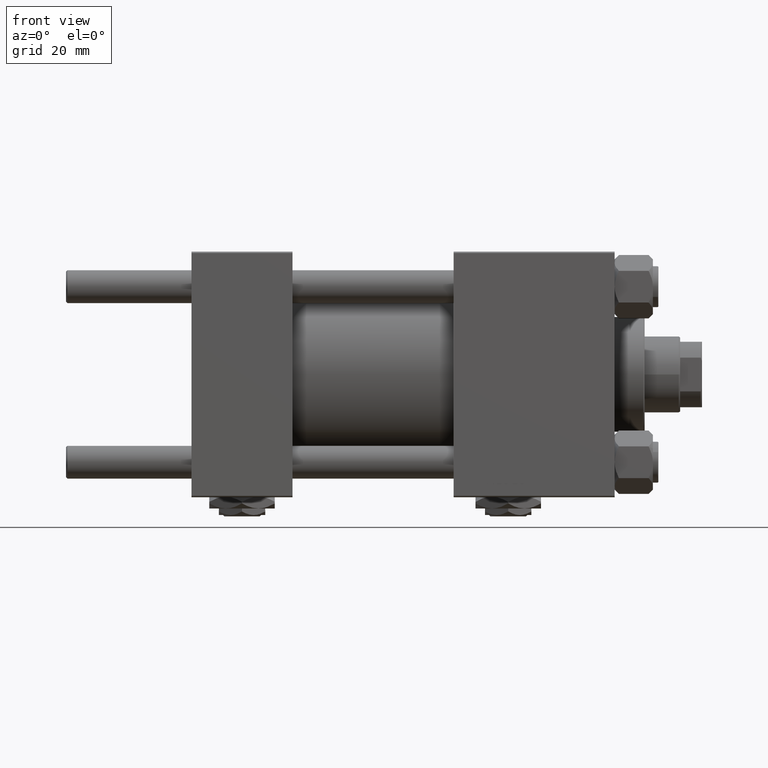
[diagram: clean part render]
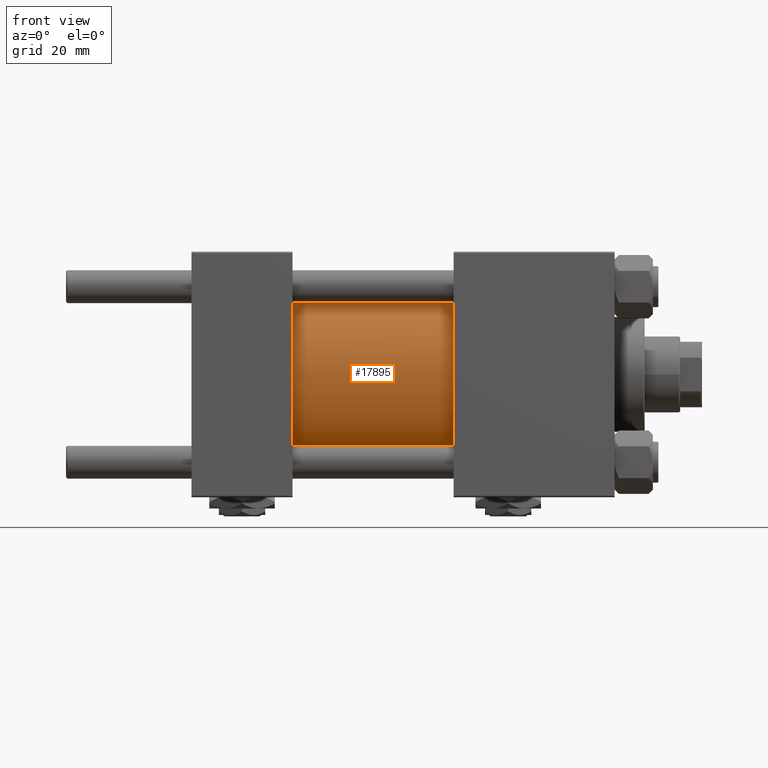
[diagram: same view with one face highlighted and labeled with its STEP entity id]
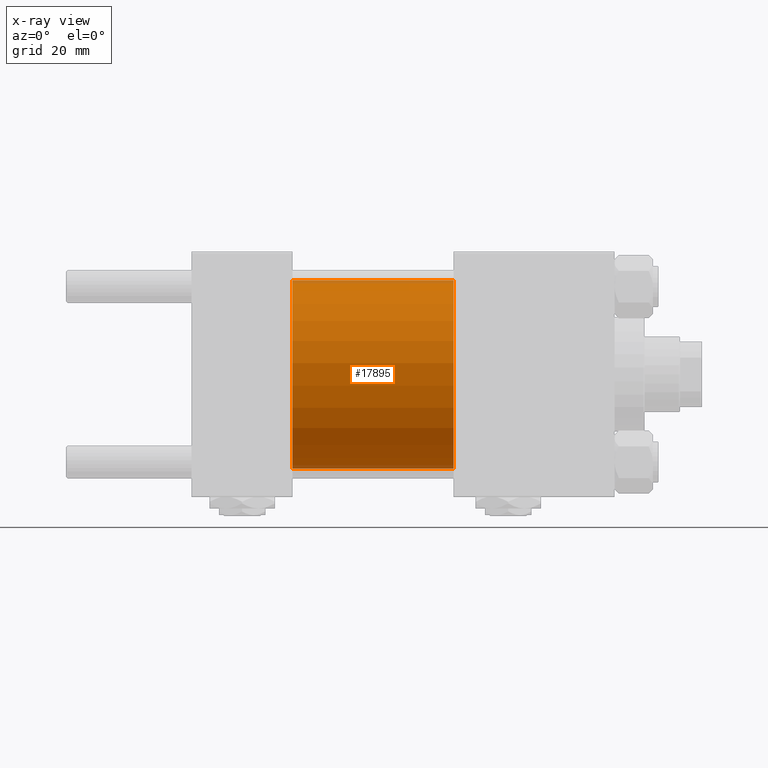
[diagram: x-ray of the same camera — body ghosted, the highlighted face saturated]
A machine part, front view. The second image highlights one B-rep face of the part: STEP entity #17895.
The next image is the same camera in x-ray: the body ghosted, the highlighted face saturated — about 4% of this face is hidden behind the body in this view.
In plain terms, the highlighted cylindrical surface (partial cylindrical patch) has radius 34.5 mm, axis along (-1, -0, -0).
Its self-contained STEP definition (entity closure, byte-faithful):
#320 = ORIENTED_EDGE ( 'NONE', *, *, #42997, .F. ) ;
#2896 = CIRCLE ( 'NONE', #33890, 34.49999999999999289 ) ;
#2912 = CARTESIAN_POINT ( 'NONE',  ( 37.00000000000000000, 4.225031457058367344E-15, -34.49999999999999289 ) ) ;
#3577 = CIRCLE ( 'NONE', #29507, 34.49999999999999289 ) ;
#4464 = DIRECTION ( 'NONE',  ( -1.000000000000000000, -0.000000000000000000, -0.000000000000000000 ) ) ;
#5756 = CARTESIAN_POINT ( 'NONE',  ( 37.00000000000000000, 0.000000000000000000, 0.000000000000000000 ) ) ;
#6068 = CYLINDRICAL_SURFACE ( 'NONE', #8092, 34.49999999999999289 ) ;
#6557 = CARTESIAN_POINT ( 'NONE',  ( 96.00000000000000000, 4.225031457058367344E-15, -34.49999999999999289 ) ) ;
#8092 = AXIS2_PLACEMENT_3D ( 'NONE', #11028, #27008, #30427 ) ;
#8966 = DIRECTION ( 'NONE',  ( 0.000000000000000000, 0.000000000000000000, -1.000000000000000000 ) ) ;
#9492 = DIRECTION ( 'NONE',  ( 1.000000000000000000, 0.000000000000000000, 0.000000000000000000 ) ) ;
#10552 = VERTEX_POINT ( 'NONE', #2912 ) ;
#11028 = CARTESIAN_POINT ( 'NONE',  ( 96.00000000000000000, 0.000000000000000000, 0.000000000000000000 ) ) ;
#13101 = EDGE_CURVE ( 'NONE', #43744, #10552, #2896, .T. ) ;
#14462 = VECTOR ( 'NONE', #4464, 1000.000000000000000 ) ;
#16512 = CARTESIAN_POINT ( 'NONE',  ( 96.00000000000000000, 4.225031457058367344E-15, -34.49999999999999289 ) ) ;
#17219 = ORIENTED_EDGE ( 'NONE', *, *, #50584, .T. ) ;
#17863 = FACE_OUTER_BOUND ( 'NONE', #34668, .T. ) ;
#17895 = ADVANCED_FACE ( 'NONE', ( #17863 ), #6068, .T. ) ;
#24046 = CARTESIAN_POINT ( 'NONE',  ( 37.00000000000000000, 0.000000000000000000, 34.49999999999999289 ) ) ;
#24364 = LINE ( 'NONE', #16512, #33591 ) ;
#25816 = VERTEX_POINT ( 'NONE', #6557 ) ;
#27008 = DIRECTION ( 'NONE',  ( -1.000000000000000000, -0.000000000000000000, -0.000000000000000000 ) ) ;
#28548 = ORIENTED_EDGE ( 'NONE', *, *, #49456, .F. ) ;
#29507 = AXIS2_PLACEMENT_3D ( 'NONE', #33084, #9492, #8966 ) ;
#30427 = DIRECTION ( 'NONE',  ( 0.000000000000000000, 0.000000000000000000, 1.000000000000000000 ) ) ;
#33084 = CARTESIAN_POINT ( 'NONE',  ( 96.00000000000000000, 0.000000000000000000, 0.000000000000000000 ) ) ;
#33591 = VECTOR ( 'NONE', #48508, 1000.000000000000000 ) ;
#33890 = AXIS2_PLACEMENT_3D ( 'NONE', #5756, #45885, #34318 ) ;
#34318 = DIRECTION ( 'NONE',  ( 0.000000000000000000, 0.000000000000000000, 1.000000000000000000 ) ) ;
#34668 = EDGE_LOOP ( 'NONE', ( #320, #28548, #17219, #41790 ) ) ;
#41790 = ORIENTED_EDGE ( 'NONE', *, *, #13101, .T. ) ;
#42997 = EDGE_CURVE ( 'NONE', #25816, #10552, #24364, .T. ) ;
#43744 = VERTEX_POINT ( 'NONE', #24046 ) ;
#45044 = VERTEX_POINT ( 'NONE', #45239 ) ;
#45239 = CARTESIAN_POINT ( 'NONE',  ( 96.00000000000000000, 0.000000000000000000, 34.49999999999999289 ) ) ;
#45885 = DIRECTION ( 'NONE',  ( 1.000000000000000000, -0.000000000000000000, 0.000000000000000000 ) ) ;
#47244 = LINE ( 'NONE', #47750, #14462 ) ;
#47750 = CARTESIAN_POINT ( 'NONE',  ( 96.00000000000000000, 0.000000000000000000, 34.49999999999999289 ) ) ;
#48508 = DIRECTION ( 'NONE',  ( -1.000000000000000000, -0.000000000000000000, -0.000000000000000000 ) ) ;
#49456 = EDGE_CURVE ( 'NONE', #45044, #25816, #3577, .T. ) ;
#50584 = EDGE_CURVE ( 'NONE', #45044, #43744, #47244, .T. ) ;